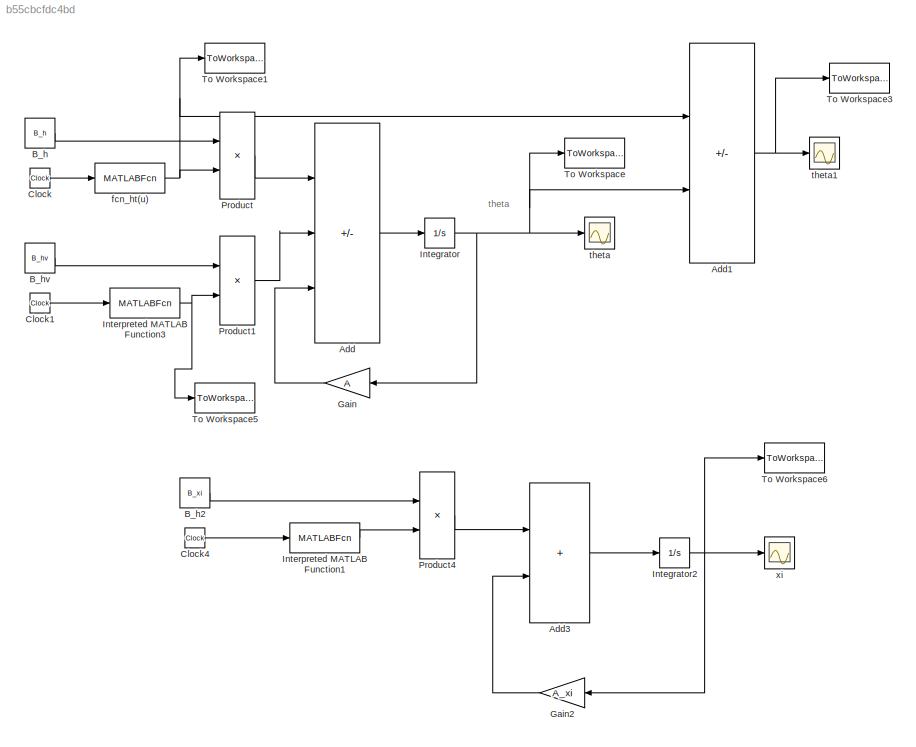
MODEL slx_b55cbcfdc4bd
KIND model
CONFIG AbsTol = 1e-6
CONFIG EnableMultiTasking = off
CONFIG FixedStep = 0.01
CONFIG MaxStep = auto
CONFIG MinStep = auto
CONFIG RelTol = 1e-6
CONFIG SampleTimeConstraint = Unconstrained
CONFIG SolverName = VariableStepAuto
CONFIG StartTime = 0.0001
CONFIG StopTime = 180
BLOCK [Sum] Add
  IconShape = rectangular
  Inputs = -++
  Ports = [3, 1]
BLOCK [Sum] Add1
  IconShape = rectangular
  Inputs = -+
  Ports = [2, 1]
BLOCK [Sum] Add3
  IconShape = rectangular
  Ports = [2, 1]
BLOCK [Constant] B_h
  Value = B_h
BLOCK [Constant] B_h2
  Value = B_xi
BLOCK [Constant] B_hv
  Value = B_hv
BLOCK [Clock] Clock
BLOCK [Clock] Clock1
BLOCK [Clock] Clock4
BLOCK [Gain] Gain
  Gain = A
  Multiplication = Matrix(K*u)
  NameLocation = top
BLOCK [Gain] Gain2
  Gain = A_xi
  Multiplication = Matrix(K*u)
  NameLocation = top
BLOCK [Integrator] Integrator
  InitialCondition = theta0
  Ports = [1, 1]
BLOCK [Integrator] Integrator2
  InitialCondition = xi0
  Ports = [1, 1]
BLOCK [MATLABFcn] Interpreted MATLAB Function1
  MATLABFcn = fcn_xi(u)
  Ports = [1, 1]
BLOCK [MATLABFcn] Interpreted MATLAB Function3
  MATLABFcn = dfcn_ht(u)
  Ports = [1, 1]
BLOCK [Product] Product
  Multiplication = Matrix(*)
  Ports = [2, 1]
BLOCK [Product] Product1
  Multiplication = Matrix(*)
  Ports = [2, 1]
BLOCK [Product] Product4
  Multiplication = Matrix(*)
  Ports = [2, 1]
BLOCK [ToWorkspace] To Workspace
  FixptAsFi = on
  MaxDataPoints = inf
  Ports = [1]
  SampleTime = -1
  Save2DSignal = 2-D array (concatenate along first dimension)
  VariableName = theta
BLOCK [ToWorkspace] To Workspace1
  FixptAsFi = on
  MaxDataPoints = inf
  Ports = [1]
  SampleTime = -1
  Save2DSignal = 2-D array (concatenate along first dimension)
  VariableName = ht
BLOCK [ToWorkspace] To Workspace3
  FixptAsFi = on
  MaxDataPoints = inf
  Ports = [1]
  SampleTime = -1
  Save2DSignal = 2-D array (concatenate along first dimension)
  VariableName = theta_ht
BLOCK [ToWorkspace] To Workspace5
  FixptAsFi = on
  MaxDataPoints = inf
  Ports = [1]
  SampleTime = -1
  Save2DSignal = 2-D array (concatenate along first dimension)
  VariableName = dhX
BLOCK [ToWorkspace] To Workspace6
  FixptAsFi = on
  MaxDataPoints = inf
  Ports = [1]
  SampleTime = -1
  Save2DSignal = 2-D array (concatenate along first dimension)
  VariableName = xi
BLOCK [MATLABFcn] fcn_ht(u)
  MATLABFcn = fcn_ht(u)
  Ports = [1, 1]
BLOCK [Scope] theta
  Floating = off
  NumInputPorts = 1
  Ports = [1]
  ScopeSpecificationString = Simulink.scopes.TimeScopeBlockCfg('CurrentConfiguration', extmgr.ConfigurationSet(extmgr.Configuration('Core','General UI',true),extmgr.Configuration('Core','Source UI',true),extmgr.Configuration('Sources','WiredSimulink',true),extmgr.Configuration('Visuals','Time Domain',true,'SerializedDisplays',{struct('MinYLimReal','-16.29476','MaxYLimReal','16.29477','YLabelReal','','MinYLimMag','0.00000','Ma...<+1691ch>
BLOCK [Scope] theta1
  Floating = off
  NumInputPorts = 1
  Ports = [1]
  ScopeSpecificationString = Simulink.scopes.TimeScopeBlockCfg('CurrentConfiguration', extmgr.ConfigurationSet(extmgr.Configuration('Core','General UI',true),extmgr.Configuration('Core','Source UI',true),extmgr.Configuration('Sources','WiredSimulink',true,'DataLoggingVariableName','ScopeData1'),extmgr.Configuration('Visuals','Time Domain',true,'SerializedDisplays',{struct('MinYLimReal','-12.42915','MaxYLimReal','17.60897','YL...<+1610ch>
BLOCK [Scope] xi
  Floating = off
  NumInputPorts = 1
  Ports = [1]
  ScopeSpecificationString = Simulink.scopes.TimeScopeBlockCfg('CurrentConfiguration', extmgr.ConfigurationSet(extmgr.Configuration('Core','General UI',true),extmgr.Configuration('Core','Source UI',true),extmgr.Configuration('Sources','WiredSimulink',true,'DataLoggingVariableName','ScopeData1'),extmgr.Configuration('Visuals','Time Domain',true,'SerializedDisplays',{struct('MinYLimReal','-3.8769','MaxYLimReal','3.8769','YLabel...<+1470ch>
ANNOTATION (root): theta
NET Add1:1 -> To Workspace3:1, theta1:1
LINE Add3:1 -> Integrator2:1
LINE Add:1 -> Integrator:1
LINE B_h2:1 -> Product4:1
LINE B_h:1 -> Product:1
LINE B_hv:1 -> Product1:1
LINE Clock1:1 -> Interpreted MATLAB Function3:1
LINE Clock4:1 -> Interpreted MATLAB Function1:1
LINE Clock:1 -> fcn_ht(u):1
LINE Gain2:1 -> Add3:2
LINE Gain:1 -> Add:3
NET Integrator2:1 -> Gain2:1, To Workspace6:1, xi:1
NET Integrator:1 -> Add1:2, Gain:1, To Workspace:1, theta:1
LINE Interpreted MATLAB Function1:1 -> Product4:2
NET Interpreted MATLAB Function3:1 -> Product1:2, To Workspace5:1
LINE Product1:1 -> Add:2
LINE Product4:1 -> Add3:1
LINE Product:1 -> Add:1
NET fcn_ht(u):1 -> Add1:1, Product:2, To Workspace1:1
note: NET lines group one-source signal fan-out (src -> all destinations, sorted); 1:1 wires keep LINE
